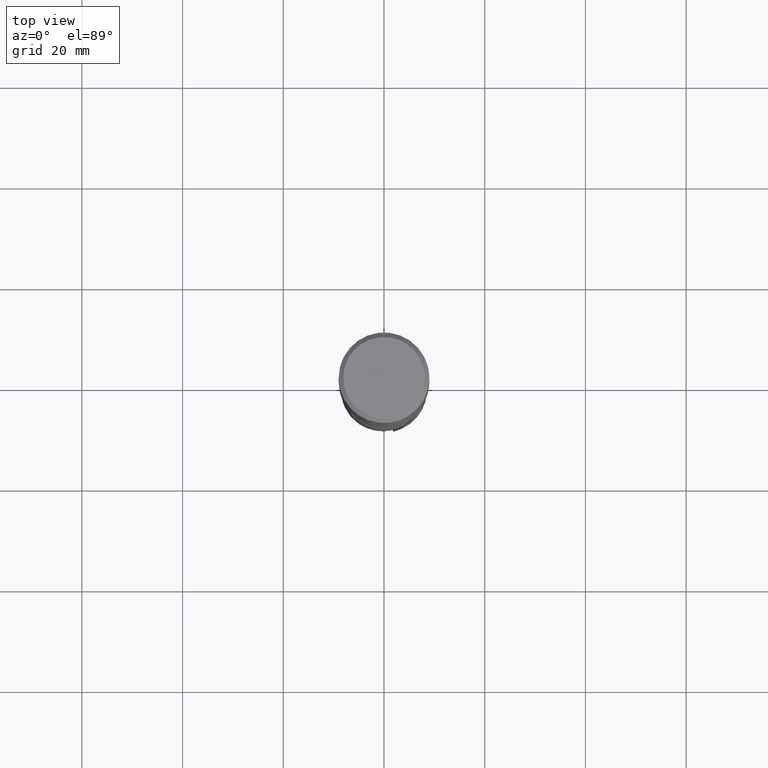
[diagram: clean part render]
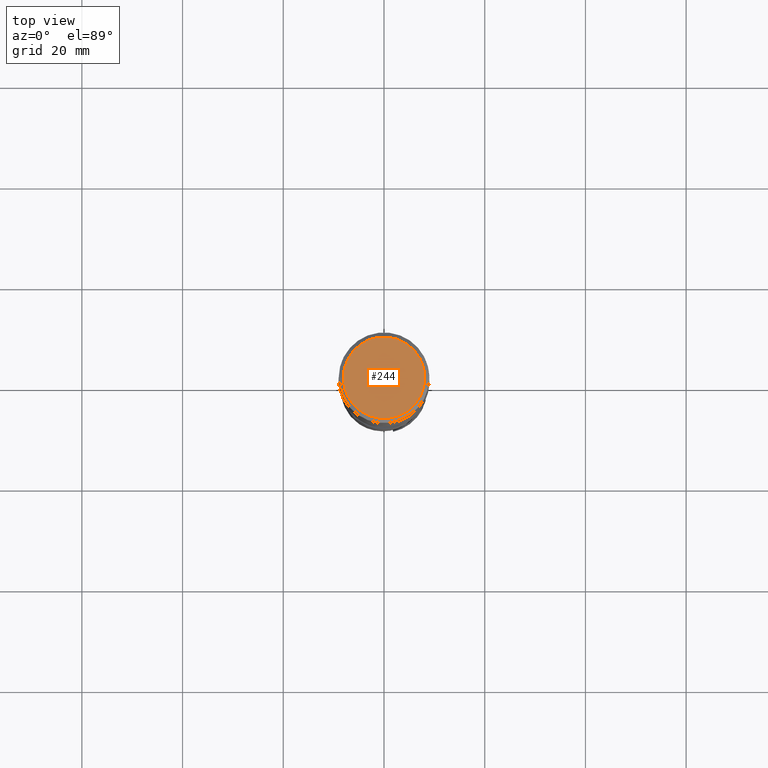
[diagram: same view with one face highlighted and labeled with its STEP entity id]
A machine part, top view. The second image highlights one B-rep face of the part: STEP entity #244.
In plain terms, the highlighted planar face has unit normal (-0, -0, 1).
Its self-contained STEP definition (entity closure, byte-faithful):
#204 = VERTEX_POINT('', #205);
#205 = CARTESIAN_POINT('', (-8.1, 4.95981953654678E-16, 0.));
#211 = EDGE_CURVE('', #204, #204, #212, .T.);
#212 = CIRCLE('', #213, 8.1);
#213 = AXIS2_PLACEMENT_3D('', #214, #215, #216);
#214 = CARTESIAN_POINT('', (-1.34940133673351E-79, 8.26270013897925E-96, 0.));
#215 = DIRECTION('', (3.74939945665464E-33, 6.12323399573677E-17, -1.));
#216 = DIRECTION('', (-1., 6.12323399573677E-17, 0.));
#244 = ADVANCED_FACE('', (#245), #248, .T.);
#245 = FACE_OUTER_BOUND('', #246, .T.);
#246 = EDGE_LOOP('', (#247));
#247 = ORIENTED_EDGE('', *, *, #211, .F.);
#248 = PLANE('', #249);
#249 = AXIS2_PLACEMENT_3D('', #250, #251, #252);
#250 = CARTESIAN_POINT('', (12.6006428407443, -12.6006428407443, 1.0281884063028E-14));
#251 = DIRECTION('', (-8.77213254024815E-16, -6.12323399573677E-17, 1.));
#252 = DIRECTION('', (0., 1., 6.12323399573677E-17));